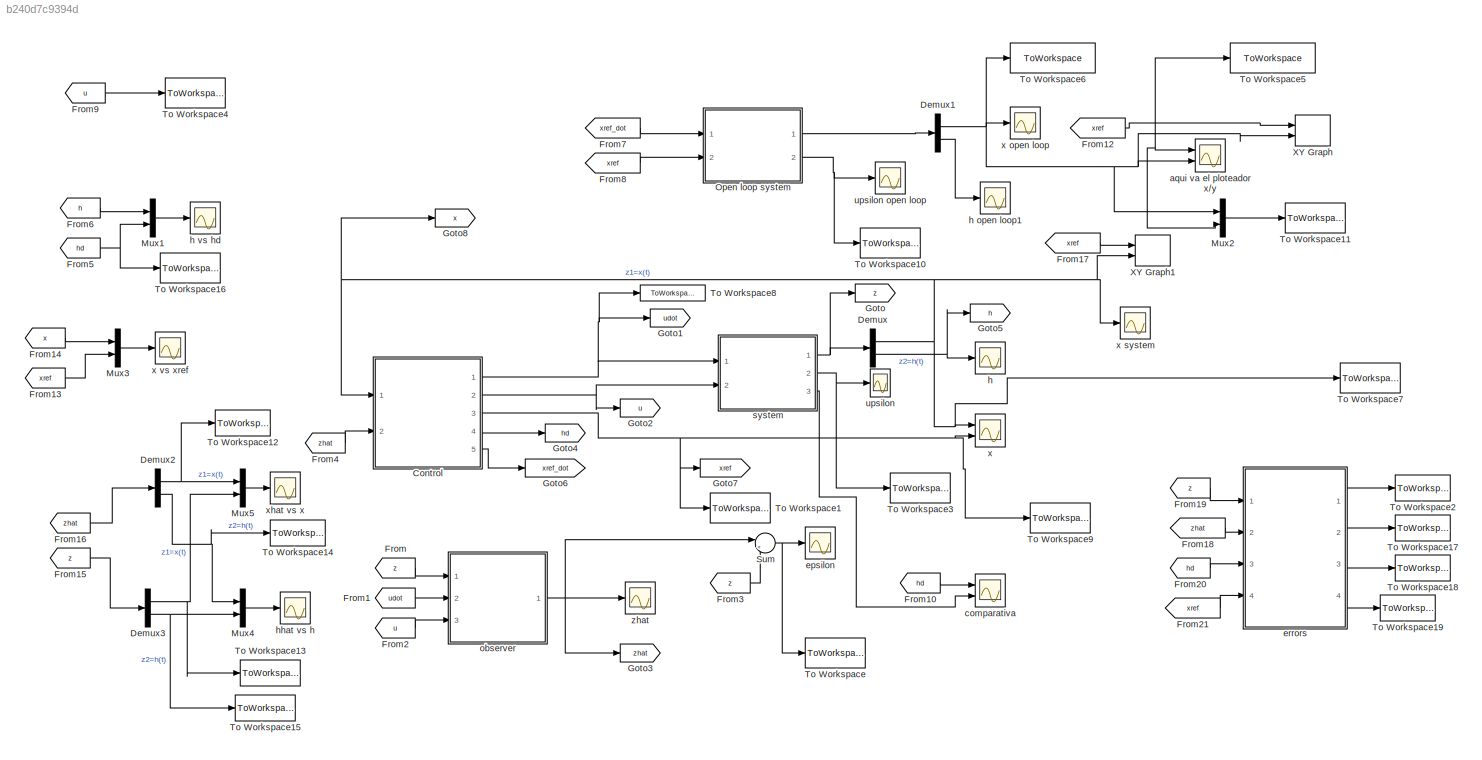
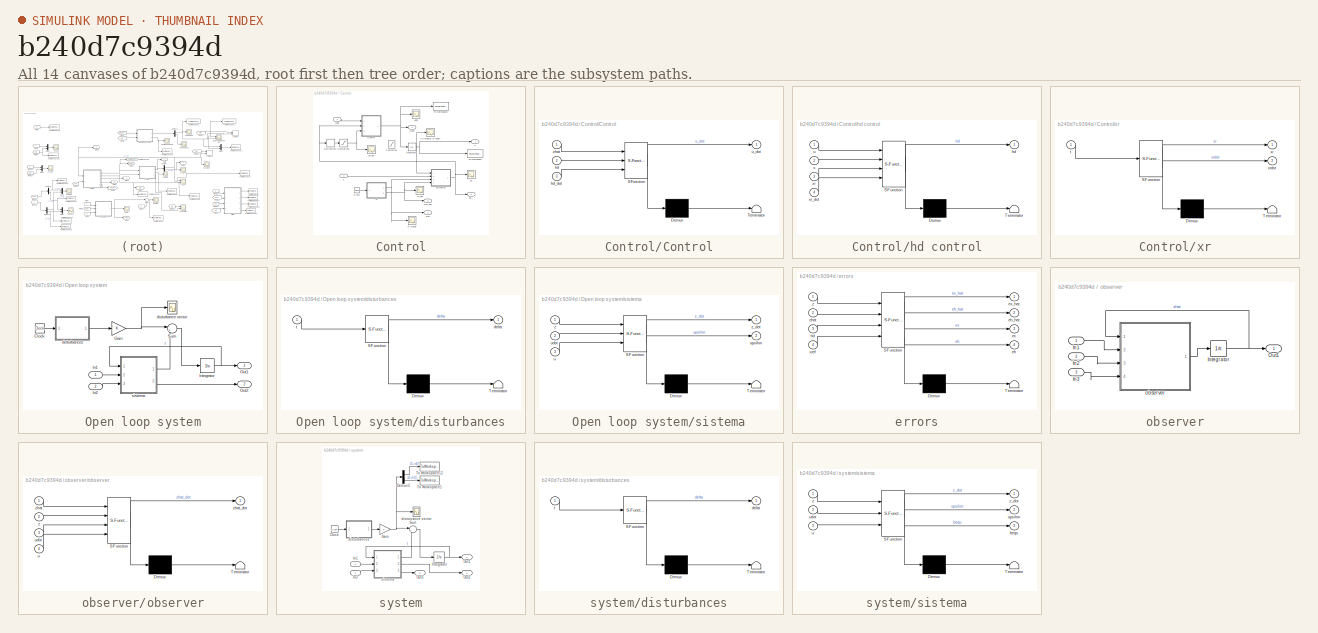
[diagram: thumbnail index - all 14 canvases of the model, root first then tree order]
MODEL slx_b240d7c9394d
KIND model
CONFIG AbsTol = auto
CONFIG EnableMultiTasking = off
CONFIG FixedStep = 0.0001
CONFIG InitFcn = params_completo
CONFIG MaxStep = auto
CONFIG MinStep = auto
CONFIG RelTol = 1e-3
CONFIG SampleTimeConstraint = Unconstrained
CONFIG SolverName = ode5
CONFIG StartTime = 0.0
CONFIG StopTime = 15
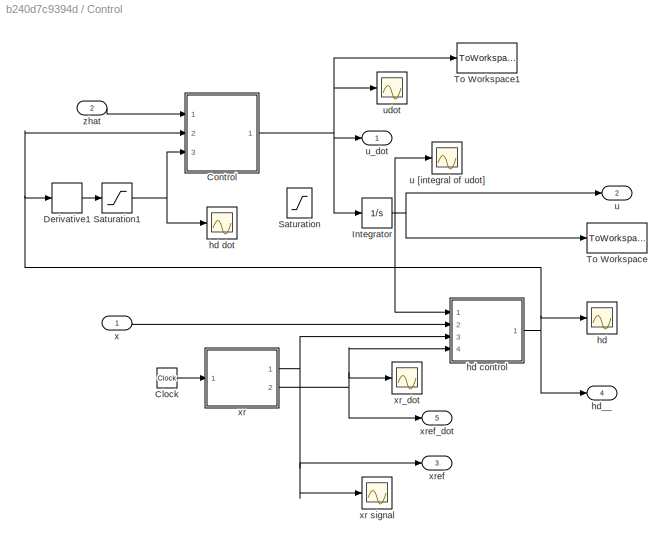
BLOCK [SubSystem] Control
  Ports = [2, 5]
  RequestExecContextInheritance = off
BLOCK [Clock] Control/Clock
BLOCK [SubSystem] Control/Control
  ErrorFcn = Stateflow.Translate.translate
  PermitHierarchicalResolution = ExplicitOnly
  Ports = [3, 1]
  RequestExecContextInheritance = off
  SFBlockType = MATLAB Function
  TreatAsAtomicUnit = on
BLOCK [Demux] Control/Control/ Demux 
  Outputs = 1
  Ports = [1, 1]
BLOCK [S-Function] Control/Control/ SFunction 
  EnableBusSupport = off
  FunctionName = sf_sfun
  Parameters = A_h,Phi_sum_abs,Phi_sum_abs_ESTIMATED,k1
  PortCounts = [3 2]
  Ports = [3, 2]
  SFcnIsStateOwnerBlock = off
  SFunctionDeploymentMode = off
  Tag = Stateflow S-Function 1
BLOCK [Terminator] Control/Control/ Terminator 
BLOCK [Inport] Control/Control/hd
  Port = 2
BLOCK [Inport] Control/Control/hd_dot
  Port = 3
BLOCK [Outport] Control/Control/u_dot
  VectorParamsAs1DForOutWhenUnconnected = off
BLOCK [Inport] Control/Control/zhat
BLOCK [Derivative] Control/Derivative1
BLOCK [Integrator] Control/Integrator
  Ports = [1, 1]
BLOCK [Saturate] Control/Saturation
  LowerLimit = -100
  UpperLimit = 100
BLOCK [Saturate] Control/Saturation1
  LowerLimit = -40
  UpperLimit = 40
BLOCK [ToWorkspace] Control/To Workspace
  FixptAsFi = on
  MaxDataPoints = inf
  Ports = [1]
  SampleTime = -1
  SaveFormat = Timeseries
  VariableName = u
BLOCK [ToWorkspace] Control/To Workspace1
  FixptAsFi = on
  MaxDataPoints = inf
  Ports = [1]
  SampleTime = -1
  SaveFormat = Timeseries
  VariableName = udot
BLOCK [Scope] Control/hd
  Floating = off
  NumInputPorts = 1
  Ports = [1]
  ScopeSpecificationString = Simulink.scopes.TimeScopeBlockCfg('CurrentConfiguration', extmgr.ConfigurationSet(extmgr.Configuration('Core','General UI',true),extmgr.Configuration('Core','Source UI',true),extmgr.Configuration('Sources','WiredSimulink',true,'DataLoggingVariableName','ScopeData5'),extmgr.Configuration('Visuals','Time Domain',true,'SerializedDisplays',{struct('MinYLimReal','-26.49004','MaxYLimReal','26.48421','YL...<+1495ch>
BLOCK [SubSystem] Control/hd control
  ErrorFcn = Stateflow.Translate.translate
  PermitHierarchicalResolution = ExplicitOnly
  Ports = [4, 1]
  RequestExecContextInheritance = off
  SFBlockType = MATLAB Function
  TreatAsAtomicUnit = on
BLOCK [Demux] Control/hd control/ Demux 
  Outputs = 1
  Ports = [1, 1]
BLOCK [S-Function] Control/hd control/ SFunction 
  EnableBusSupport = off
  FunctionName = sf_sfun
  Parameters = L_ij,a,a_sat,b,k,kx1,kx2
  PortCounts = [4 2]
  Ports = [4, 2]
  SFcnIsStateOwnerBlock = off
  SFunctionDeploymentMode = off
  Tag = Stateflow S-Function 4
BLOCK [Terminator] Control/hd control/ Terminator 
BLOCK [Outport] Control/hd control/hd
  VectorParamsAs1DForOutWhenUnconnected = off
BLOCK [Inport] Control/hd control/u
BLOCK [Inport] Control/hd control/x
  Port = 2
BLOCK [Inport] Control/hd control/xr
  Port = 3
BLOCK [Inport] Control/hd control/xr_dot
  Port = 4
BLOCK [Scope] Control/hd dot
  Floating = off
  NumInputPorts = 1
  Ports = [1]
  ScopeSpecificationString = Simulink.scopes.TimeScopeBlockCfg('CurrentConfiguration', extmgr.ConfigurationSet(extmgr.Configuration('Core','General UI',true),extmgr.Configuration('Core','Source UI',true),extmgr.Configuration('Sources','WiredSimulink',true,'DataLoggingVariableName','ScopeData6'),extmgr.Configuration('Visuals','Time Domain',true,'SerializedDisplays',{struct('MinYLimReal','-50.00000','MaxYLimReal','50.00000','YL...<+1491ch>
BLOCK [Outport] Control/hd__
  Port = 4
  VectorParamsAs1DForOutWhenUnconnected = off
BLOCK [Outport] Control/u
  Port = 2
  VectorParamsAs1DForOutWhenUnconnected = off
BLOCK [Scope] Control/u [integral of udot]
  Floating = off
  NumInputPorts = 1
  Ports = [1]
  ScopeSpecificationString = Simulink.scopes.TimeScopeBlockCfg('CurrentConfiguration', extmgr.ConfigurationSet(extmgr.Configuration('Core','General UI',true),extmgr.Configuration('Core','Source UI',true),extmgr.Configuration('Sources','WiredSimulink',true,'DataLoggingVariableName','ScopeData1'),extmgr.Configuration('Visuals','Time Domain',true,'SerializedDisplays',{struct('MinYLimReal','-99.24013','MaxYLimReal','99.8682','YLa...<+1516ch>
BLOCK [Outport] Control/u_dot
  VectorParamsAs1DForOutWhenUnconnected = off
BLOCK [Scope] Control/udot
  Floating = off
  NumInputPorts = 1
  Ports = [1]
  ScopeSpecificationString = Simulink.scopes.TimeScopeBlockCfg('CurrentConfiguration', extmgr.ConfigurationSet(extmgr.Configuration('Core','General UI',true),extmgr.Configuration('Core','Source UI',true),extmgr.Configuration('Sources','WiredSimulink',true,'DataLoggingVariableName','ScopeData2'),extmgr.Configuration('Visuals','Time Domain',true,'SerializedDisplays',{struct('MinYLimReal','-530.01751','MaxYLimReal','530.13658','...<+1530ch>
BLOCK [Inport] Control/x
BLOCK [SubSystem] Control/xr
  ErrorFcn = Stateflow.Translate.translate
  PermitHierarchicalResolution = ExplicitOnly
  Ports = [1, 2]
  RequestExecContextInheritance = off
  SFBlockType = MATLAB Function
  TreatAsAtomicUnit = on
BLOCK [Scope] Control/xr signal
  Floating = off
  NumInputPorts = 1
  Ports = [1]
  ScopeSpecificationString = Simulink.scopes.TimeScopeBlockCfg('CurrentConfiguration', extmgr.ConfigurationSet(extmgr.Configuration('Core','General UI',true),extmgr.Configuration('Core','Source UI',true),extmgr.Configuration('Sources','WiredSimulink',true,'DataLoggingVariableName','ScopeData4'),extmgr.Configuration('Visuals','Time Domain',true,'SerializedDisplays',{struct('MinYLimReal','-100.00000','MaxYLimReal','100.00000','...<+1511ch>
BLOCK [Demux] Control/xr/ Demux 
  Outputs = 1
  Ports = [1, 1]
BLOCK [S-Function] Control/xr/ SFunction 
  EnableBusSupport = off
  FunctionName = sf_sfun
  Parameters = alpha,freq
  PortCounts = [1 3]
  Ports = [1, 3]
  SFcnIsStateOwnerBlock = off
  SFunctionDeploymentMode = off
  Tag = Stateflow S-Function 5
BLOCK [Terminator] Control/xr/ Terminator 
BLOCK [Inport] Control/xr/t
BLOCK [Outport] Control/xr/xr
  VectorParamsAs1DForOutWhenUnconnected = off
BLOCK [Outport] Control/xr/xrdot
  Port = 2
  VectorParamsAs1DForOutWhenUnconnected = off
BLOCK [Scope] Control/xr_dot
  Floating = off
  NumInputPorts = 1
  Ports = [1]
  ScopeSpecificationString = Simulink.scopes.TimeScopeBlockCfg('CurrentConfiguration', extmgr.ConfigurationSet(extmgr.Configuration('Core','General UI',true),extmgr.Configuration('Core','Source UI',true),extmgr.Configuration('Sources','WiredSimulink',true,'DataLoggingVariableName','ScopeData4'),extmgr.Configuration('Visuals','Time Domain',true,'SerializedDisplays',{struct('MinYLimReal','-62.83185','MaxYLimReal','62.83185','YL...<+1506ch>
BLOCK [Outport] Control/xref
  Port = 3
  VectorParamsAs1DForOutWhenUnconnected = off
BLOCK [Outport] Control/xref_dot
  Port = 5
  VectorParamsAs1DForOutWhenUnconnected = off
BLOCK [Inport] Control/zhat
  Port = 2
BLOCK [Demux] Demux
  Outputs = 2
  Ports = [1, 2]
BLOCK [Demux] Demux1
  Outputs = 2
  Ports = [1, 2]
BLOCK [Demux] Demux2
  Outputs = 2
  Ports = [1, 2]
BLOCK [Demux] Demux3
  Outputs = 2
  Ports = [1, 2]
BLOCK [From] From
  GotoTag = z
BLOCK [From] From1
  GotoTag = udot
BLOCK [From] From10
  GotoTag = hd
BLOCK [From] From12
  GotoTag = xref
BLOCK [From] From13
  GotoTag = xref
BLOCK [From] From14
  GotoTag = x
BLOCK [From] From15
  GotoTag = z
BLOCK [From] From16
  GotoTag = zhat
BLOCK [From] From17
  GotoTag = xref
BLOCK [From] From18
  GotoTag = zhat
BLOCK [From] From19
  GotoTag = z
BLOCK [From] From2
  GotoTag = u
BLOCK [From] From20
  GotoTag = hd
BLOCK [From] From21
  GotoTag = xref
BLOCK [From] From3
  GotoTag = z
BLOCK [From] From4
  GotoTag = zhat
BLOCK [From] From5
  GotoTag = hd
BLOCK [From] From6
  GotoTag = h
BLOCK [From] From7
  GotoTag = xref_dot
BLOCK [From] From8
  GotoTag = xref
BLOCK [From] From9
  GotoTag = u
BLOCK [Goto] Goto
  GotoTag = z
BLOCK [Goto] Goto1
  GotoTag = udot
BLOCK [Goto] Goto2
  GotoTag = u
BLOCK [Goto] Goto3
  GotoTag = zhat
BLOCK [Goto] Goto4
  GotoTag = hd
BLOCK [Goto] Goto5
  GotoTag = h
BLOCK [Goto] Goto6
  GotoTag = xref_dot
BLOCK [Goto] Goto7
  GotoTag = xref
BLOCK [Goto] Goto8
  GotoTag = x
BLOCK [Mux] Mux1
  DisplayOption = bar
  Inputs = 2
  Ports = [2, 1]
BLOCK [Mux] Mux2
  DisplayOption = bar
  Inputs = 2
  Ports = [2, 1]
BLOCK [Mux] Mux3
  DisplayOption = bar
  Inputs = 2
  Ports = [2, 1]
BLOCK [Mux] Mux4
  DisplayOption = bar
  Inputs = 2
  Ports = [2, 1]
BLOCK [Mux] Mux5
  DisplayOption = bar
  Inputs = 2
  Ports = [2, 1]
BLOCK [SubSystem] Open loop system
  Ports = [2, 2]
  RequestExecContextInheritance = off
BLOCK [Clock] Open loop system/Clock
BLOCK [Gain] Open loop system/Gain
BLOCK [Inport] Open loop system/In1
BLOCK [Inport] Open loop system/In2
  Port = 2
BLOCK [Integrator] Open loop system/Integrator
  InitialCondition = [3;-2]
  Ports = [1, 1]
BLOCK [Outport] Open loop system/Out1
  VectorParamsAs1DForOutWhenUnconnected = off
BLOCK [Outport] Open loop system/Out2
  Port = 2
  VectorParamsAs1DForOutWhenUnconnected = off
BLOCK [Sum] Open loop system/Sum
  Inputs = |++
  Ports = [2, 1]
BLOCK [Scope] Open loop system/disturbance vector
  Floating = off
  NumInputPorts = 1
  Ports = [1]
  ScopeSpecificationString = Simulink.scopes.TimeScopeBlockCfg('CurrentConfiguration', extmgr.ConfigurationSet(extmgr.Configuration('Core','General UI',true),extmgr.Configuration('Core','Source UI',true),extmgr.Configuration('Sources','WiredSimulink',true,'DataLoggingVariableName','ScopeData1'),extmgr.Configuration('Visuals','Time Domain',true,'SerializedDisplays',{struct('MinYLimReal','-15.625','MaxYLimReal','10.625','YLabel...<+1483ch>
BLOCK [SubSystem] Open loop system/disturbances
  ErrorFcn = Stateflow.Translate.translate
  PermitHierarchicalResolution = ExplicitOnly
  Ports = [1, 1]
  RequestExecContextInheritance = off
  SFBlockType = MATLAB Function
  TreatAsAtomicUnit = on
BLOCK [Demux] Open loop system/disturbances/ Demux 
  Outputs = 1
  Ports = [1, 1]
BLOCK [S-Function] Open loop system/disturbances/ SFunction 
  EnableBusSupport = off
  FunctionName = sf_sfun
  PortCounts = [1 2]
  Ports = [1, 2]
  SFcnIsStateOwnerBlock = off
  SFunctionDeploymentMode = off
  Tag = Stateflow S-Function 7
BLOCK [Terminator] Open loop system/disturbances/ Terminator 
BLOCK [Outport] Open loop system/disturbances/delta
  VectorParamsAs1DForOutWhenUnconnected = off
BLOCK [Inport] Open loop system/disturbances/t
BLOCK [SubSystem] Open loop system/sistema
  ErrorFcn = Stateflow.Translate.translate
  PermitHierarchicalResolution = ExplicitOnly
  Ports = [3, 2]
  RequestExecContextInheritance = off
  SFBlockType = MATLAB Function
  TreatAsAtomicUnit = on
BLOCK [Demux] Open loop system/sistema/ Demux 
  Outputs = 1
  Ports = [1, 1]
BLOCK [S-Function] Open loop system/sistema/ SFunction 
  EnableBusSupport = off
  FunctionName = sf_sfun
  Parameters = A_h,a,b,beta1,beta2,beta3,beta4,beta5,beta6,k
  PortCounts = [3 3]
  Ports = [3, 3]
  SFcnIsStateOwnerBlock = off
  SFunctionDeploymentMode = off
  Tag = Stateflow S-Function 8
BLOCK [Terminator] Open loop system/sistema/ Terminator 
BLOCK [Inport] Open loop system/sistema/u
  Port = 3
BLOCK [Inport] Open loop system/sistema/udot
  Port = 2
BLOCK [Outport] Open loop system/sistema/upsilon
  Port = 2
  VectorParamsAs1DForOutWhenUnconnected = off
BLOCK [Inport] Open loop system/sistema/z
BLOCK [Outport] Open loop system/sistema/z_dot
  VectorParamsAs1DForOutWhenUnconnected = off
BLOCK [Sum] Sum
  Inputs = |+-
  Ports = [2, 1]
BLOCK [ToWorkspace] To Workspace
  FixptAsFi = on
  MaxDataPoints = inf
  Ports = [1]
  SampleTime = -1
  SaveFormat = Timeseries
  VariableName = epsilon
BLOCK [ToWorkspace] To Workspace1
  FixptAsFi = on
  MaxDataPoints = inf
  Ports = [1]
  SampleTime = -1
  SaveFormat = Timeseries
  VariableName = xd
BLOCK [ToWorkspace] To Workspace10
  FixptAsFi = on
  MaxDataPoints = inf
  Ports = [1]
  SampleTime = -1
  SaveFormat = Structure
  VariableName = upsilon_open
BLOCK [ToWorkspace] To Workspace11
  FixptAsFi = on
  MaxDataPoints = inf
  Ports = [1]
  SampleTime = -1
  SaveFormat = Timeseries
  VariableName = xopen
BLOCK [ToWorkspace] To Workspace12
  FixptAsFi = on
  MaxDataPoints = inf
  Ports = [1]
  SampleTime = -1
  SaveFormat = Timeseries
  VariableName = xhat
BLOCK [ToWorkspace] To Workspace13
  FixptAsFi = on
  MaxDataPoints = inf
  Ports = [1]
  SampleTime = -1
  SaveFormat = Timeseries
  VariableName = x
BLOCK [ToWorkspace] To Workspace14
  FixptAsFi = on
  MaxDataPoints = inf
  Ports = [1]
  SampleTime = -1
  SaveFormat = Timeseries
  VariableName = hhat
BLOCK [ToWorkspace] To Workspace15
  FixptAsFi = on
  MaxDataPoints = inf
  Ports = [1]
  SampleTime = -1
  SaveFormat = Timeseries
  VariableName = h
BLOCK [ToWorkspace] To Workspace16
  FixptAsFi = on
  MaxDataPoints = inf
  Ports = [1]
  SampleTime = -1
  SaveFormat = Timeseries
  VariableName = hd
BLOCK [ToWorkspace] To Workspace17
  FixptAsFi = on
  MaxDataPoints = inf
  Ports = [1]
  SampleTime = -1
  SaveFormat = Timeseries
  VariableName = eh_hat
BLOCK [ToWorkspace] To Workspace18
  FixptAsFi = on
  MaxDataPoints = inf
  Ports = [1]
  SampleTime = -1
  SaveFormat = Timeseries
  VariableName = ex
BLOCK [ToWorkspace] To Workspace19
  FixptAsFi = on
  MaxDataPoints = inf
  Ports = [1]
  SampleTime = -1
  SaveFormat = Timeseries
  VariableName = eh
BLOCK [ToWorkspace] To Workspace2
  FixptAsFi = on
  MaxDataPoints = inf
  Ports = [1]
  SampleTime = -1
  SaveFormat = Timeseries
  VariableName = ex_hat
BLOCK [ToWorkspace] To Workspace3
  FixptAsFi = on
  MaxDataPoints = inf
  Ports = [1]
  SampleTime = -1
  SaveFormat = Structure
  VariableName = upsilon
BLOCK [ToWorkspace] To Workspace4
  FixptAsFi = on
  MaxDataPoints = inf
  Ports = [1]
  SampleTime = -1
  SaveFormat = Structure
  VariableName = u_numeric
BLOCK [ToWorkspace] To Workspace5
  FixptAsFi = on
  MaxDataPoints = inf
  Ports = [1]
  SampleTime = -1
  SaveFormat = Structure
  VariableName = xref_numeric
BLOCK [ToWorkspace] To Workspace6
  FixptAsFi = on
  MaxDataPoints = inf
  Ports = [1]
  SampleTime = -1
  SaveFormat = Structure
  VariableName = x_numeric_open
BLOCK [ToWorkspace] To Workspace7
  FixptAsFi = on
  MaxDataPoints = inf
  Ports = [1]
  SampleTime = -1
  SaveFormat = Structure
  VariableName = x_numeric
BLOCK [ToWorkspace] To Workspace8
  FixptAsFi = on
  MaxDataPoints = inf
  Ports = [1]
  SampleTime = -1
  SaveFormat = Structure
  VariableName = udot_numeric
BLOCK [ToWorkspace] To Workspace9
  FixptAsFi = on
  MaxDataPoints = inf
  Ports = [1]
  SampleTime = -1
  SaveFormat = Structure
  VariableName = x_d_numeric
BLOCK [Record] XY Graph
  CompatibilityTag = XY
  FileSettingsInternal = {"entries":[{"content":{"excelSettings":{"content":{},"type":"Streamout.ExcelSettings"}},"type":"Streamout.FileSettingStorage","uuid":"58948ec6-d345-4ba4-a5f9-32bad8470a1a"}],"packageUris":["http://schema.mathworks.com/mf0/streamout_blocks/R2020a"],"version":"1.0"}
  Layout = [1 1]
  Ports = [2]
  SignalsInternal = {"entries":[{"content":{"signals":[{"content":{"blockPath":["completo/XY Graph"],"channel":[],"dimensions":[1],"domain":"completo/XY Graph","lineColor":"#a2142f","plots":[1],"port":1,"sid":[],"signalID":655,"signalName":"From12"},"type":"RecordBlkView.Signal","uuid":"ccf76168-5501-4964-b812-cd25957922a2"},{"content":{"blockPath":["completo/XY Graph"],"channel":[],"dimensions":[1],"domain":"complet...<+357ch>
  VisualizationBindings = {"xyplotplugin":{"info":[{"series":[{"bindingParametersList":[{"parameter":"X-Axis","signalID":655,"signalName":"From12"},{"parameter":"Y-Axis","signalID":658,"signalName":"Demux1:1"}],"seriesID":39720}],"subplotID":1}]}}
BLOCK [Record] XY Graph1
  CompatibilityTag = XY
  FileSettingsInternal = {"entries":[{"content":{"excelSettings":{"content":{},"type":"Streamout.ExcelSettings"}},"type":"Streamout.FileSettingStorage","uuid":"11f322b1-eef3-45be-a83d-5182385591cb"}],"packageUris":["http://schema.mathworks.com/mf0/streamout_blocks/R2020a"],"version":"1.0"}
  Layout = [1 1]
  Ports = [2]
  SignalsInternal = {"entries":[{"content":{"signals":[{"content":{"blockPath":["completo/XY Graph1"],"channel":[],"dimensions":[1],"domain":"completo/XY Graph1","lineColor":"#a2142f","plots":[1],"port":1,"sid":[],"signalID":647,"signalName":"From17"},"type":"RecordBlkView.Signal","uuid":"a2b6a24d-7c32-44e8-9cda-e5b06c3ad770"},{"content":{"blockPath":["completo/XY Graph1"],"channel":[],"dimensions":[1],"domain":"comp...<+360ch>
  VisualizationBindings = {"xyplotplugin":{"info":[{"series":[{"bindingParametersList":[{"parameter":"X-Axis","signalID":647,"signalName":"From17"},{"parameter":"Y-Axis","signalID":650,"signalName":"z1=x(t)"}],"seriesID":20684}],"subplotID":1}]}}
BLOCK [Scope] aqui va el ploteador x//y
  Floating = off
  NumInputPorts = 2
  Ports = [2]
  ScopeSpecificationString = Simulink.scopes.TimeScopeBlockCfg('CurrentConfiguration', extmgr.ConfigurationSet(extmgr.Configuration('Core','General UI',true),extmgr.Configuration('Core','Source UI',true),extmgr.Configuration('Sources','WiredSimulink',true,'DataLoggingVariableName','ScopeData3'),extmgr.Configuration('Visuals','Time Domain',true,'SerializedDisplays',{struct('MinYLimReal','-100.00000','MaxYLimReal','100.00000','...<+1499ch>
BLOCK [Scope] comparativa
  Floating = off
  NameLocation = right
  NumInputPorts = 2
  Ports = [2]
  ScopeSpecificationString = Simulink.scopes.TimeScopeBlockCfg('CurrentConfiguration', extmgr.ConfigurationSet(extmgr.Configuration('Core','General UI',true),extmgr.Configuration('Core','Source UI',true),extmgr.Configuration('Sources','WiredSimulink',true,'DataLoggingVariableName','ScopeData1'),extmgr.Configuration('Visuals','Time Domain',true,'SerializedDisplays',{struct('MinYLimReal','-127535.33045','MaxYLimReal','127329.56...<+1509ch>
BLOCK [Scope] epsilon
  Floating = off
  NumInputPorts = 1
  Ports = [1]
  ScopeSpecificationString = Simulink.scopes.TimeScopeBlockCfg('CurrentConfiguration', extmgr.ConfigurationSet(extmgr.Configuration('Core','General UI',true),extmgr.Configuration('Core','Source UI',true),extmgr.Configuration('Sources','WiredSimulink',true,'DataLoggingVariableName','ScopeData2'),extmgr.Configuration('Visuals','Time Domain',true,'SerializedDisplays',{struct('MinYLimReal','-4.03873','MaxYLimReal','2.67097','YLab...<+1516ch>
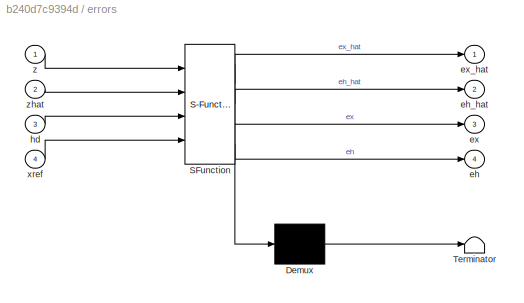
BLOCK [SubSystem] errors
  ErrorFcn = Stateflow.Translate.translate
  PermitHierarchicalResolution = ExplicitOnly
  Ports = [4, 4]
  RequestExecContextInheritance = off
  SFBlockType = MATLAB Function
  TreatAsAtomicUnit = on
BLOCK [Demux] errors/ Demux 
  Outputs = 1
  Ports = [1, 1]
BLOCK [S-Function] errors/ SFunction 
  EnableBusSupport = off
  FunctionName = sf_sfun
  PortCounts = [4 5]
  Ports = [4, 5]
  SFcnIsStateOwnerBlock = off
  SFunctionDeploymentMode = off
  Tag = Stateflow S-Function 9
BLOCK [Terminator] errors/ Terminator 
BLOCK [Outport] errors/eh
  Port = 4
BLOCK [Outport] errors/eh_hat
  Port = 2
BLOCK [Outport] errors/ex
  Port = 3
BLOCK [Outport] errors/ex_hat
  VectorParamsAs1DForOutWhenUnconnected = off
BLOCK [Inport] errors/hd
  Port = 3
BLOCK [Inport] errors/xref
  Port = 4
BLOCK [Inport] errors/z
BLOCK [Inport] errors/zhat
  Port = 2
BLOCK [Scope] h
  Floating = off
  NumInputPorts = 1
  Ports = [1]
  ScopeSpecificationString = Simulink.scopes.TimeScopeBlockCfg('CurrentConfiguration', extmgr.ConfigurationSet(extmgr.Configuration('Core','General UI',true),extmgr.Configuration('Core','Source UI',true),extmgr.Configuration('Sources','WiredSimulink',true),extmgr.Configuration('Visuals','Time Domain',true,'SerializedDisplays',{struct('MinYLimReal','-27.53112','MaxYLimReal','27.32537','YLabelReal','','MinYLimMag','0.00000','Ma...<+1468ch>
BLOCK [Scope] h open loop1
  Floating = off
  NumInputPorts = 1
  Ports = [1]
  ScopeSpecificationString = Simulink.scopes.TimeScopeBlockCfg('CurrentConfiguration', extmgr.ConfigurationSet(extmgr.Configuration('Core','General UI',true),extmgr.Configuration('Core','Source UI',true),extmgr.Configuration('Sources','WiredSimulink',true,'DataLoggingVariableName','ScopeData1'),extmgr.Configuration('Visuals','Time Domain',true,'SerializedDisplays',{struct('MinYLimReal','-41.32136','MaxYLimReal','38.71623','YL...<+1495ch>
BLOCK [Scope] h vs hd
  Floating = off
  NumInputPorts = 1
  Ports = [1]
  ScopeSpecificationString = Simulink.scopes.TimeScopeBlockCfg('CurrentConfiguration', extmgr.ConfigurationSet(extmgr.Configuration('Core','General UI',true),extmgr.Configuration('Core','Source UI',true),extmgr.Configuration('Sources','WiredSimulink',true,'DataLoggingVariableName','ScopeData1'),extmgr.Configuration('Visuals','Time Domain',true,'SerializedDisplays',{struct('MinYLimReal','-40.67955','MaxYLimReal','57.98576','YL...<+1489ch>
BLOCK [Scope] hhat vs h
  Floating = off
  NumInputPorts = 1
  Ports = [1]
  ScopeSpecificationString = Simulink.scopes.TimeScopeBlockCfg('CurrentConfiguration', extmgr.ConfigurationSet(extmgr.Configuration('Core','General UI',true),extmgr.Configuration('Core','Source UI',true),extmgr.Configuration('Sources','WiredSimulink',true,'DataLoggingVariableName','ScopeData2'),extmgr.Configuration('Visuals','Time Domain',true,'SerializedDisplays',{struct('MinYLimReal','-34.23108','MaxYLimReal','38.07229','YL...<+1491ch>
BLOCK [SubSystem] observer
  Ports = [3, 1]
  RequestExecContextInheritance = off
BLOCK [Inport] observer/In1
BLOCK [Inport] observer/In2
  Port = 2
BLOCK [Inport] observer/In3
  Port = 3
BLOCK [Integrator] observer/Integrator
  InitialCondition = [0;0]
  Ports = [1, 1]
BLOCK [Outport] observer/Out1
  VectorParamsAs1DForOutWhenUnconnected = off
BLOCK [SubSystem] observer/observer
  ErrorFcn = Stateflow.Translate.translate
  PermitHierarchicalResolution = ExplicitOnly
  Ports = [4, 1]
  RequestExecContextInheritance = off
  SFBlockType = MATLAB Function
  TreatAsAtomicUnit = on
BLOCK [Demux] observer/observer/ Demux 
  Outputs = 1
  Ports = [1, 1]
BLOCK [S-Function] observer/observer/ SFunction 
  EnableBusSupport = off
  FunctionName = sf_sfun
  Parameters = A_h,Phi_sum_abs_ESTIMATED,a,b,k,k1_o,k2_o,mu1,mu2,q
  PortCounts = [4 2]
  Ports = [4, 2]
  SFcnIsStateOwnerBlock = off
  SFunctionDeploymentMode = off
  Tag = Stateflow S-Function 3
BLOCK [Terminator] observer/observer/ Terminator 
BLOCK [Inport] observer/observer/u
  Port = 4
BLOCK [Inport] observer/observer/udot
  Port = 3
BLOCK [Inport] observer/observer/z
  Port = 2
BLOCK [Inport] observer/observer/zhat
BLOCK [Outport] observer/observer/zhat_dot
  VectorParamsAs1DForOutWhenUnconnected = off
BLOCK [SubSystem] system
  Ports = [2, 3]
  RequestExecContextInheritance = off
BLOCK [Clock] system/Clock
BLOCK [Demux] system/Demux2
  Outputs = 2
  Ports = [1, 2]
BLOCK [Gain] system/Gain
BLOCK [Inport] system/In1
BLOCK [Inport] system/In2
  Port = 2
BLOCK [Integrator] system/Integrator
  InitialCondition = [3;-2]
  Ports = [1, 1]
BLOCK [Outport] system/Out1
  VectorParamsAs1DForOutWhenUnconnected = off
BLOCK [Outport] system/Out2
  Port = 2
  VectorParamsAs1DForOutWhenUnconnected = off
BLOCK [Outport] system/Out3
  Port = 3
  VectorParamsAs1DForOutWhenUnconnected = off
BLOCK [Sum] system/Sum
  Inputs = |++
  Ports = [2, 1]
BLOCK [ToWorkspace] system/To Workspace1
  FixptAsFi = on
  MaxDataPoints = inf
  Ports = [1]
  SampleTime = -1
  SaveFormat = Timeseries
  VariableName = deltah
BLOCK [ToWorkspace] system/To Workspace12
  FixptAsFi = on
  MaxDataPoints = inf
  Ports = [1]
  SampleTime = -1
  SaveFormat = Timeseries
  VariableName = deltax
BLOCK [SubSystem] system/disturbances
  ErrorFcn = Stateflow.Translate.translate
  PermitHierarchicalResolution = ExplicitOnly
  Ports = [1, 1]
  RequestExecContextInheritance = off
  SFBlockType = MATLAB Function
  TreatAsAtomicUnit = on
BLOCK [Demux] system/disturbances/ Demux 
  Outputs = 1
  Ports = [1, 1]
BLOCK [S-Function] system/disturbances/ SFunction 
  EnableBusSupport = off
  FunctionName = sf_sfun
  PortCounts = [1 2]
  Ports = [1, 2]
  SFcnIsStateOwnerBlock = off
  SFunctionDeploymentMode = off
  Tag = Stateflow S-Function 2
BLOCK [Terminator] system/disturbances/ Terminator 
BLOCK [Outport] system/disturbances/delta
  VectorParamsAs1DForOutWhenUnconnected = off
BLOCK [Inport] system/disturbances/t
BLOCK [Scope] system/disturvance vector
  Floating = off
  NumInputPorts = 1
  Ports = [1]
  ScopeSpecificationString = Simulink.scopes.TimeScopeBlockCfg('CurrentConfiguration', extmgr.ConfigurationSet(extmgr.Configuration('Core','General UI',true),extmgr.Configuration('Core','Source UI',true),extmgr.Configuration('Sources','WiredSimulink',true,'DataLoggingVariableName','ScopeData1'),extmgr.Configuration('Visuals','Time Domain',true,'SerializedDisplays',{struct('MinYLimReal','-15.625','MaxYLimReal','10.625','YLabel...<+1479ch>
BLOCK [SubSystem] system/sistema
  ErrorFcn = Stateflow.Translate.translate
  PermitHierarchicalResolution = ExplicitOnly
  Ports = [3, 3]
  RequestExecContextInheritance = off
  SFBlockType = MATLAB Function
  TreatAsAtomicUnit = on
BLOCK [Demux] system/sistema/ Demux 
  Outputs = 1
  Ports = [1, 1]
BLOCK [S-Function] system/sistema/ SFunction 
  EnableBusSupport = off
  FunctionName = sf_sfun
  Parameters = A_h,a,b,beta1,beta2,beta3,beta4,beta5,beta6,k
  PortCounts = [3 4]
  Ports = [3, 4]
  SFcnIsStateOwnerBlock = off
  SFunctionDeploymentMode = off
  Tag = Stateflow S-Function 6
BLOCK [Terminator] system/sistema/ Terminator 
BLOCK [Outport] system/sistema/bequ
  Port = 3
  VectorParamsAs1DForOutWhenUnconnected = off
BLOCK [Inport] system/sistema/u
  Port = 3
BLOCK [Inport] system/sistema/udot
  Port = 2
BLOCK [Outport] system/sistema/upsilon
  Port = 2
  VectorParamsAs1DForOutWhenUnconnected = off
BLOCK [Inport] system/sistema/z
BLOCK [Outport] system/sistema/z_dot
  VectorParamsAs1DForOutWhenUnconnected = off
BLOCK [Scope] upsilon
  Floating = off
  NumInputPorts = 1
  Ports = [1]
  ScopeSpecificationString = Simulink.scopes.TimeScopeBlockCfg('CurrentConfiguration', extmgr.ConfigurationSet(extmgr.Configuration('Core','General UI',true),extmgr.Configuration('Core','Source UI',true),extmgr.Configuration('Sources','WiredSimulink',true,'DataLoggingVariableName','ScopeData3'),extmgr.Configuration('Visuals','Time Domain',true,'SerializedDisplays',{struct('MinYLimReal','-100.00239','MaxYLimReal','100.00241','...<+1481ch>
BLOCK [Scope] upsilon open loop
  Floating = off
  NumInputPorts = 1
  Ports = [1]
  ScopeSpecificationString = Simulink.scopes.TimeScopeBlockCfg('CurrentConfiguration', extmgr.ConfigurationSet(extmgr.Configuration('Core','General UI',true),extmgr.Configuration('Core','Source UI',true),extmgr.Configuration('Sources','WiredSimulink',true,'DataLoggingVariableName','ScopeData2'),extmgr.Configuration('Visuals','Time Domain',true,'SerializedDisplays',{struct('MinYLimReal','-137.08974','MaxYLimReal','137.16223','...<+1492ch>
BLOCK [Scope] x
  Floating = off
  NumInputPorts = 2
  Ports = [2]
  ScopeSpecificationString = Simulink.scopes.TimeScopeBlockCfg('CurrentConfiguration', extmgr.ConfigurationSet(extmgr.Configuration('Core','General UI',true),extmgr.Configuration('Core','Source UI',true),extmgr.Configuration('Sources','WiredSimulink',true,'DataLoggingVariableName','ScopeData3'),extmgr.Configuration('Visuals','Time Domain',true,'SerializedDisplays',{struct('MinYLimReal','-100.86172','MaxYLimReal','100.87156','...<+1528ch>
BLOCK [Scope] x open loop
  Floating = off
  NumInputPorts = 1
  Ports = [1]
  ScopeSpecificationString = Simulink.scopes.TimeScopeBlockCfg('CurrentConfiguration', extmgr.ConfigurationSet(extmgr.Configuration('Core','General UI',true),extmgr.Configuration('Core','Source UI',true),extmgr.Configuration('Sources','WiredSimulink',true,'DataLoggingVariableName','ScopeData2'),extmgr.Configuration('Visuals','Time Domain',true,'SerializedDisplays',{struct('MinYLimReal','-137.08971','MaxYLimReal','137.1622','Y...<+1495ch>
BLOCK [Scope] x system
  Floating = off
  NumInputPorts = 1
  Ports = [1]
  ScopeSpecificationString = Simulink.scopes.TimeScopeBlockCfg('CurrentConfiguration', extmgr.ConfigurationSet(extmgr.Configuration('Core','General UI',true),extmgr.Configuration('Core','Source UI',true),extmgr.Configuration('Sources','WiredSimulink',true,'DataLoggingVariableName','ScopeData2'),extmgr.Configuration('Visuals','Time Domain',true,'SerializedDisplays',{struct('MinYLimReal','-101.52688','MaxYLimReal','100.17206','...<+1499ch>
BLOCK [Scope] x vs xref
  Floating = off
  NumInputPorts = 1
  Ports = [1]
  ScopeSpecificationString = Simulink.scopes.TimeScopeBlockCfg('CurrentConfiguration', extmgr.ConfigurationSet(extmgr.Configuration('Core','General UI',true),extmgr.Configuration('Core','Source UI',true),extmgr.Configuration('Sources','WiredSimulink',true,'DataLoggingVariableName','ScopeData2'),extmgr.Configuration('Visuals','Time Domain',true,'SerializedDisplays',{struct('MinYLimReal','-100.00476','MaxYLimReal','100.00488','...<+1499ch>
BLOCK [Scope] xhat vs x
  Floating = off
  NumInputPorts = 1
  Ports = [1]
  ScopeSpecificationString = Simulink.scopes.TimeScopeBlockCfg('CurrentConfiguration', extmgr.ConfigurationSet(extmgr.Configuration('Core','General UI',true),extmgr.Configuration('Core','Source UI',true),extmgr.Configuration('Sources','WiredSimulink',true,'DataLoggingVariableName','ScopeData1'),extmgr.Configuration('Visuals','Time Domain',true,'SerializedDisplays',{struct('MinYLimReal','-100.0976','MaxYLimReal','100.09575','Y...<+1495ch>
BLOCK [Scope] zhat
  Floating = off
  NumInputPorts = 1
  Ports = [1]
  ScopeSpecificationString = Simulink.scopes.TimeScopeBlockCfg('CurrentConfiguration', extmgr.ConfigurationSet(extmgr.Configuration('Core','General UI',true),extmgr.Configuration('Core','Source UI',true),extmgr.Configuration('Sources','WiredSimulink',true,'DataLoggingVariableName','ScopeData1'),extmgr.Configuration('Visuals','Time Domain',true,'SerializedDisplays',{struct('MinYLimReal','-100.00031','MaxYLimReal','100.00043','...<+1499ch>
LINE Control/Clock:1 -> Control/xr:1
NET Control/Control:1 -> Control/Integrator:1, Control/To Workspace1:1, Control/u_dot:1, Control/udot:1
LINE Control/Derivative1:1 -> Control/Saturation1:1
NET Control/Integrator:1 -> Control/To Workspace:1, Control/hd control:1, Control/u [integral of udot]:1, Control/u:1
NET Control/Saturation1:1 -> Control/Control:3, Control/hd dot:1
NET Control/hd control:1 -> Control/Control:2, Control/Derivative1:1, Control/hd:1, Control/hd__:1
LINE Control/x:1 -> Control/hd control:2
NET Control/xr:1 -> Control/hd control:3, Control/xr signal:1, Control/xref:1
NET Control/xr:2 -> Control/hd control:4, Control/xr_dot:1, Control/xref_dot:1
LINE Control/zhat:1 -> Control/Control:1
NET Control:1 -> Goto1:1, To Workspace8:1, system:1
NET Control:2 -> Goto2:1, system:2
NET Control:3 -> Goto7:1, To Workspace1:1, To Workspace9:1, x:2
LINE Control:4 -> Goto4:1
LINE Control:5 -> Goto6:1
NET Demux1:1 -> Mux2:1, To Workspace6:1, XY Graph:2, aqui va el ploteador x//y:2, x open loop:1
LINE Demux1:2 -> h open loop1:1
NET Demux2:1 -> Mux5:1, To Workspace12:1
NET Demux2:2 -> Mux4:1, To Workspace14:1
NET Demux3:1 -> Mux5:2, To Workspace13:1
NET Demux3:2 -> Mux4:2, To Workspace15:1
NET Demux:1 -> Control:1, Goto8:1, To Workspace7:1, XY Graph1:2, x system:1, x:1
NET Demux:2 -> Goto5:1, h:1
LINE From10:1 -> comparativa:1
NET From12:1 -> Mux2:2, To Workspace5:1, XY Graph:1, aqui va el ploteador x//y:1
LINE From13:1 -> Mux3:2
LINE From14:1 -> Mux3:1
LINE From15:1 -> Demux3:1
LINE From16:1 -> Demux2:1
LINE From17:1 -> XY Graph1:1
LINE From18:1 -> errors:2
LINE From19:1 -> errors:1
LINE From1:1 -> observer:2
LINE From20:1 -> errors:3
LINE From21:1 -> errors:4
LINE From2:1 -> observer:3
LINE From3:1 -> Sum:2
LINE From4:1 -> Control:2
NET From5:1 -> Mux1:2, To Workspace16:1
LINE From6:1 -> Mux1:1
LINE From7:1 -> Open loop system:1
LINE From8:1 -> Open loop system:2
LINE From9:1 -> To Workspace4:1
LINE From:1 -> observer:1
LINE Mux1:1 -> h vs hd:1
LINE Mux2:1 -> To Workspace11:1
LINE Mux3:1 -> x vs xref:1
LINE Mux4:1 -> hhat vs h:1
LINE Mux5:1 -> xhat vs x:1
LINE Open loop system/Clock:1 -> Open loop system/disturbances:1
NET Open loop system/Gain:1 -> Open loop system/Sum:1, Open loop system/disturbance vector:1
LINE Open loop system/In1:1 -> Open loop system/sistema:2
LINE Open loop system/In2:1 -> Open loop system/sistema:3
NET Open loop system/Integrator:1 -> Open loop system/Out1:1, Open loop system/sistema:1
LINE Open loop system/Sum:1 -> Open loop system/Integrator:1
LINE Open loop system/disturbances:1 -> Open loop system/Gain:1
LINE Open loop system/sistema:1 -> Open loop system/Sum:2
LINE Open loop system/sistema:2 -> Open loop system/Out2:1
LINE Open loop system:1 -> Demux1:1
NET Open loop system:2 -> To Workspace10:1, upsilon open loop:1
NET Sum:1 -> To Workspace:1, epsilon:1
LINE errors:1 -> To Workspace2:1
LINE errors:2 -> To Workspace17:1
LINE errors:3 -> To Workspace18:1
LINE errors:4 -> To Workspace19:1
LINE observer/In1:1 -> observer/observer:2
LINE observer/In2:1 -> observer/observer:3
LINE observer/In3:1 -> observer/observer:4
NET observer/Integrator:1 -> observer/Out1:1, observer/observer:1
LINE observer/observer:1 -> observer/Integrator:1
NET observer:1 -> Goto3:1, Sum:1, zhat:1
LINE system/Clock:1 -> system/disturbances:1
LINE system/Demux2:1 -> system/To Workspace12:1
LINE system/Demux2:2 -> system/To Workspace1:1
NET system/Gain:1 -> system/Demux2:1, system/Sum:1, system/disturvance vector:1
LINE system/In1:1 -> system/sistema:2
LINE system/In2:1 -> system/sistema:3
NET system/Integrator:1 -> system/Out1:1, system/sistema:1
LINE system/Sum:1 -> system/Integrator:1
LINE system/disturbances:1 -> system/Gain:1
LINE system/sistema:1 -> system/Sum:2
LINE system/sistema:2 -> system/Out2:1
LINE system/sistema:3 -> system/Out3:1
NET system:1 -> Demux:1, Goto:1
NET system:2 -> To Workspace3:1, upsilon:1
LINE system:3 -> comparativa:2
note: NET lines group one-source signal fan-out (src -> all destinations, sorted); 1:1 wires keep LINE
CHART Open loop system/disturbances states=1 transitions=1
  STATE_LABEL 'eML_blk_kernel()'
  STATE_LABEL 'SCRIPT:\nfunction delta = dist(t)\n\ndelta_x = -3 - 10*cos(0.2*t+10);\ndelta_h = 8*sin(t); \n\ndelta = [delta_x ; delta_h];\n'
CHART Open loop system/sistema states=1 transitions=1
  STATE_LABEL 'eML_blk_kernel()'
  STATE_LABEL 'SCRIPT:\nfunction [z_dot, upsilon] = sys(z, udot, u, k, a, b, beta1, beta2, beta3, beta4, beta5, beta6, A_h)\n\n    x = z(1,1);\n    h = z(2,1);\n\n    Phi = beta1*sign( udot*h ) + beta2*sign( udot*u ) + ...\n          beta3*sign( u*h )    + beta4*sign( udot )   + ...\n          beta5*sign( h )      + beta6*sign( u );\n\n    %============================ System model ============================\n    z_dot =...<+113ch>'
CHART errors states=1 transitions=1
  STATE_LABEL 'eML_blk_kernel()'
  STATE_LABEL 'SCRIPT:\nfunction [ex_hat, eh_hat, ex, eh] = fcn(z, zhat, hd, xref)\n\nx = z(1,1);\nh = z(2,1);\n\nxhat = zhat(1,1);\nhhat = zhat(2,1);\n\n\n\n%%%\nex_hat = xhat - x;\neh_hat = hhat - h;\n\nex = x - xref;\neh = h - hd;  \n\n\n\n\n'
CHART Control/Control states=1 transitions=1
  STATE_LABEL 'eML_blk_kernel()'
  STATE_LABEL 'SCRIPT:\nfunction u_dot = fcn(zhat, hd, hd_dot, k1, A_h, Phi_sum_abs, Phi_sum_abs_ESTIMATED)\n\neh = zhat(2,1) - hd;  %error with estimated states\n\n%%%%%%%%%%%%%%%%%%% CO N T R O L %%%%%%%%%%%%%%%%%%%%%%%%%%%%%%%%%\n\nu_dot = ( - k1 * sign(eh) + hd_dot )/( A_h - (Phi_sum_abs)*abs(eh + hd) ) ;\n\n\n\n'
CHART system/disturbances states=1 transitions=1
  STATE_LABEL 'eML_blk_kernel()'
  STATE_LABEL 'SCRIPT:\nfunction delta = dist(t)\n\ndelta_x = -3 - 10*cos(0.2*t+10);\ndelta_h = 8*sin(t); \n\ndelta = [delta_x ; delta_h];\n'
CHART observer/observer states=1 transitions=1
  STATE_LABEL 'eML_blk_kernel()'
  STATE_LABEL 'SCRIPT:\nfunction zhat_dot = obs(zhat, z, udot, u, A_h, k, a, b, Phi_sum_abs_ESTIMATED, k1_o, k2_o, mu1, mu2, q)\n\nx = z(1,1);\nxhat = zhat(1,1);\nhhat = zhat(2,1);\n\n\n    gx = [ a*xhat + b*k*u - b*hhat                        ; %    gx = [ a*xhat + b*k*u                          ; \n          ( udot ) * ( A_h - abs(hhat)*Phi_sum_abs_ESTIMATED ) ] ;\n\n\n%%%%%%%%%%%%%%%%%%%%%%%% o b s e r v e r %%%%%%%%%%%%...<+303ch>'
CHART Control/hd control states=1 transitions=1
  STATE_LABEL 'eML_blk_kernel()'
  STATE_LABEL 'SCRIPT:\nfunction hd = fcn(u, x, xr, xr_dot, k, a, b, L_ij, kx1, kx2, a_sat)\n\nex = x - xr;\n\n%%%%%%%%%%%%%%%%%%%%%%%% C O N T R O L  %%%%%%%%%%%%%%%%%%%%%%%%%%%\n\ns = kx1*ex; % kx1\n\nif s > L_ij\n    sigma = tanh(a_sat*(s - L_ij))/(a_sat) + L_ij;\nelseif abs(s) <= L_ij\n    sigma = s;\nelseif s < (-L_ij)\n    sigma = tanh(a_sat*(s + L_ij))/(a_sat) - L_ij;\nelse\n    sigma = 0;\nend\n    \nhd = (1/b) * ( - sigma...<+50ch>'
CHART Control/xr states=1 transitions=1
  STATE_LABEL 'eML_blk_kernel()'
  STATE_LABEL 'SCRIPT:\nfunction [xr, xrdot] = fcn(t, alpha, freq)\n\nxr = alpha*sin(freq*t);\nxrdot = freq*alpha*cos(freq*t);'
CHART system/sistema states=1 transitions=1
  STATE_LABEL 'eML_blk_kernel()'
  STATE_LABEL 'SCRIPT:\nfunction [z_dot, upsilon, bequ] = sys(z, udot, u, A_h, k, a, b, beta1, beta2, beta3, beta4, beta5, beta6)\n\n    x = z(1,1);\n    h = z(2,1);\n\n    Phi = beta1*sign( udot*h ) + beta2*sign( udot*u ) + ...\n          beta3*sign( u*h )    + beta4*sign( udot )   + ...\n          beta5*sign( h )      + beta6*sign( u );\n\n    %============================ System model ============================\n    %...<+135ch>'
CHART  states=0 transitions=0
CHART  states=0 transitions=0
CHART  states=0 transitions=0
CHART  states=0 transitions=0
CHART  states=0 transitions=0
CHART  states=0 transitions=0
CHART  states=0 transitions=0
CHART  states=0 transitions=0
CHART  states=0 transitions=0
